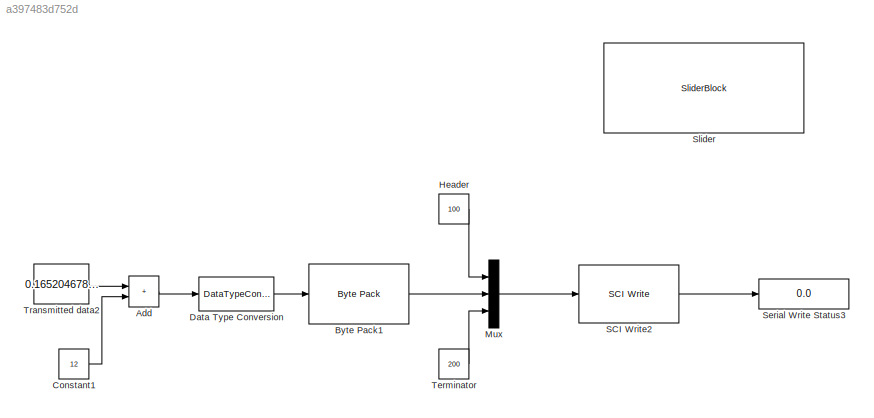
MODEL slx_a397483d752d
KIND model
CONFIG AbsTol = auto
CONFIG EnableMultiTasking = on
CONFIG FixedStep = auto
CONFIG MaxStep = auto
CONFIG MinStep = auto
CONFIG RelTol = 1e-3
CONFIG SampleTimeConstraint = Unconstrained
CONFIG SolverName = FixedStepAuto
CONFIG StartTime = 0.0
CONFIG StopTime = inf
BLOCK [Sum] Add
  AccumDataTypeStr = uint16
  IconShape = rectangular
  OutDataTypeStr = uint16
  Ports = [2, 1]
BLOCK [Reference] Byte Pack1  REF=svdutilitieslib/Byte Pack
  Ports = [1, 1]
  SourceBlock = svdutilitieslib/Byte Pack
  SourceProductBaseCode = ANDROID,ARDUINO,ML_ARDUINO,ECCORTEXA,ECCORTEXR,SC_BEAGLEBONE_BLUE,EC_FREEDOM_BOARD,EC_FRDM_K64F,INTEL_BLOCKSET,MICROBIT,NUCLEO,NVIDIA,PX4AUTOPILOTS,RASPPIIO,STMICRODIS,TIC2000,XILINX_BLOCKSET
  SourceType = Byte pack
BLOCK [Constant] Constant1
  OutDataTypeStr = single
  Value = 12
BLOCK [DataTypeConversion] Data Type Conversion
  OutDataTypeStr = uint16
  RndMeth = Floor
  SaturateOnIntegerOverflow = off
BLOCK [Constant] Header
  OutDataTypeStr = uint8
  SampleTime = 0.01
  Value = 100
BLOCK [Mux] Mux
  DisplayOption = bar
  Inputs = 3
  Ports = [3, 1]
BLOCK [Reference] SCI Write2  REF=mbedblockslib/SCI Write
  Ports = [1, 1]
  SourceBlock = mbedblockslib/SCI Write
  SourceProductBaseCode = MICROBIT,NUCLEO,STMICRODIS
  SourceType = mbed.SCIWrite
BLOCK [Display] Serial Write Status3
  Decimation = 1
  Ports = [1]
BLOCK [SliderBlock] Slider
  ScaleMax = 12
  ScaleMin = -12
BLOCK [Constant] Terminator
  OutDataTypeStr = uint8
  SampleTime = 0.01
  Value = 200
BLOCK [Constant] Transmitted data2
  OutDataTypeStr = single
  SampleTime = 0.01
  Value = 0.1652046783625725
LINE Add:1 -> Data Type Conversion:1
LINE Byte Pack1:1 -> Mux:2
LINE Constant1:1 -> Add:2
LINE Data Type Conversion:1 -> Byte Pack1:1
LINE Header:1 -> Mux:1
LINE Mux:1 -> SCI Write2:1
LINE SCI Write2:1 -> Serial Write Status3:1
LINE Terminator:1 -> Mux:3
LINE Transmitted data2:1 -> Add:1
